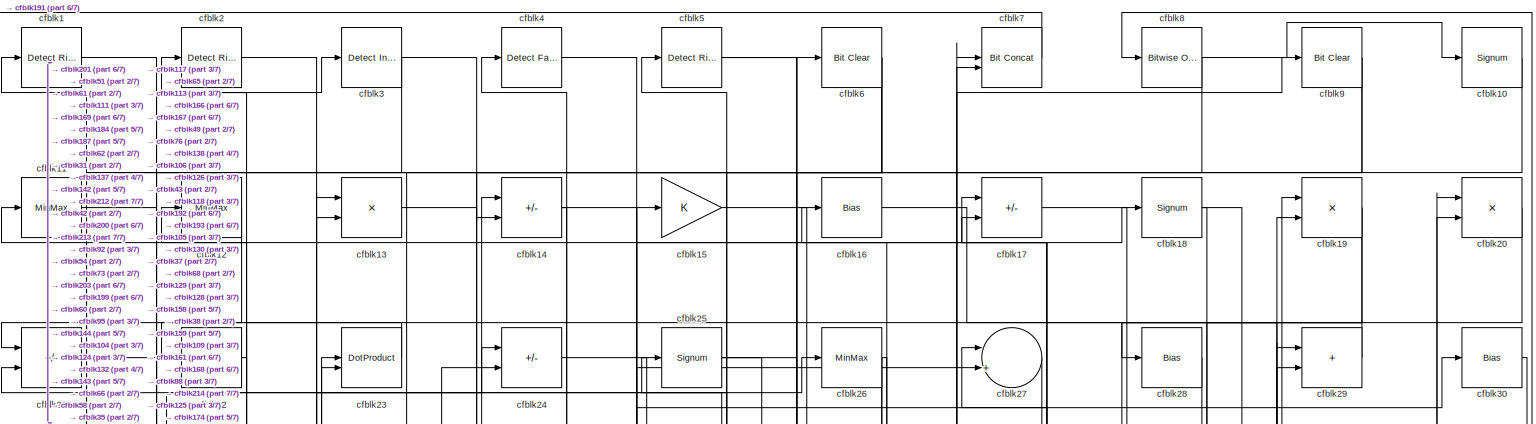
[diagram: root canvas - part 1/7, full width, top band]
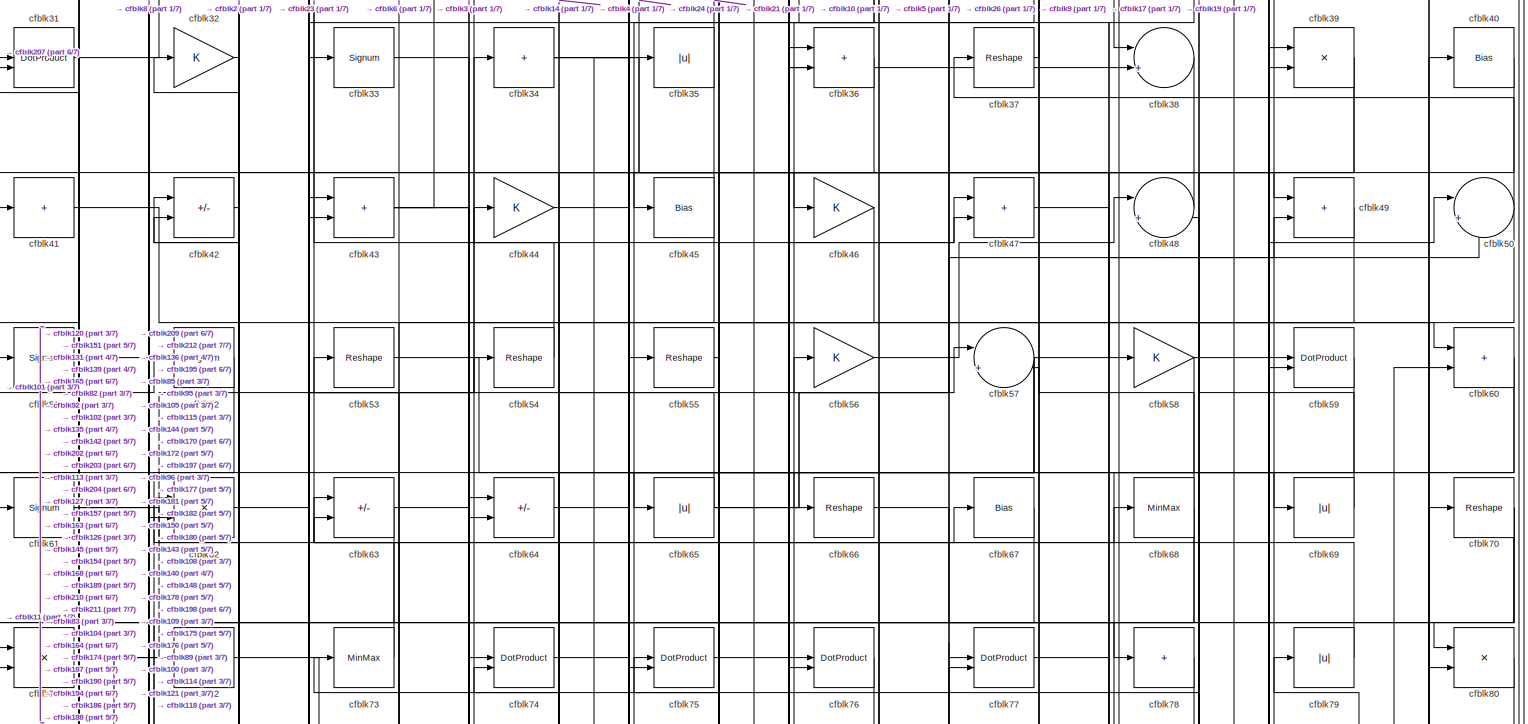
[diagram: root canvas - part 2/7, full width, top band]
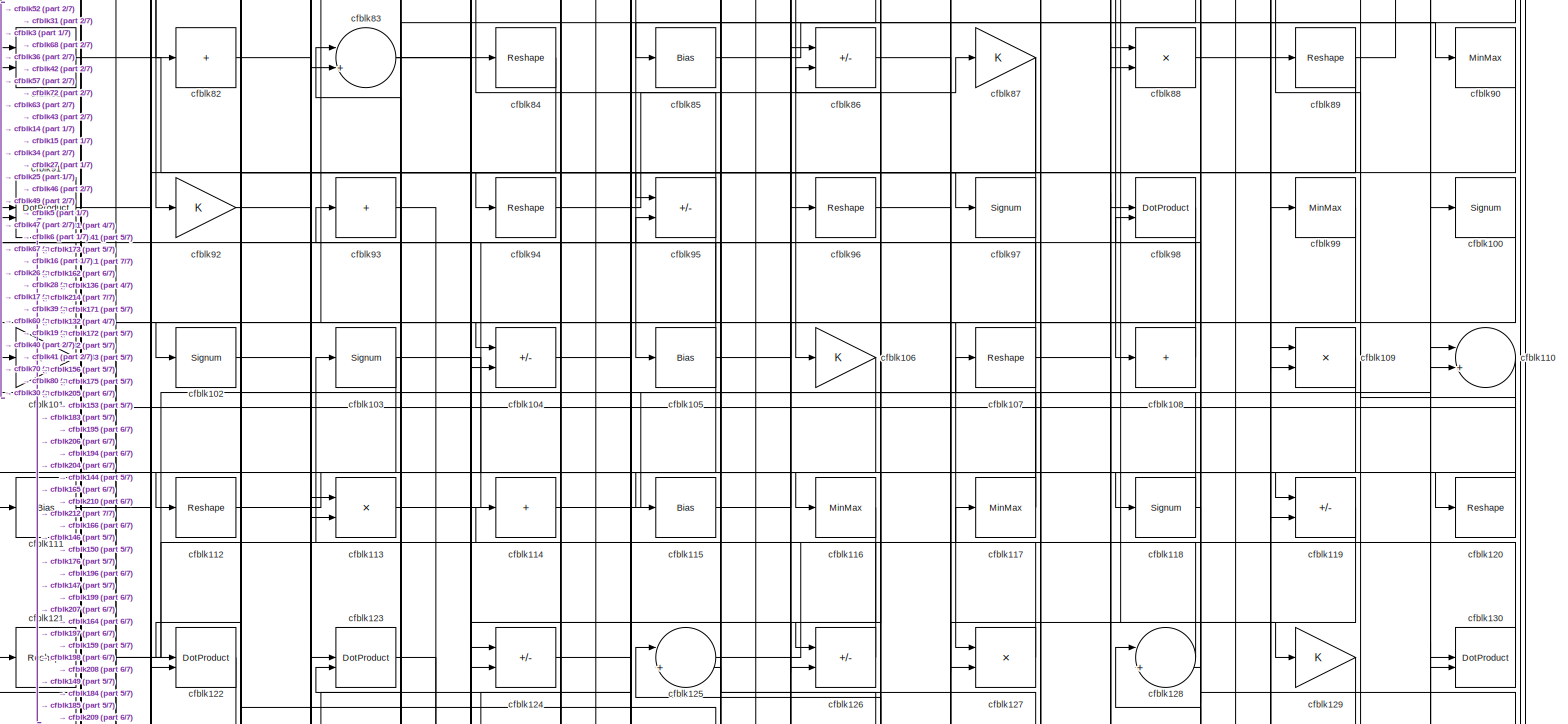
[diagram: root canvas - part 3/7, full width, middle band]
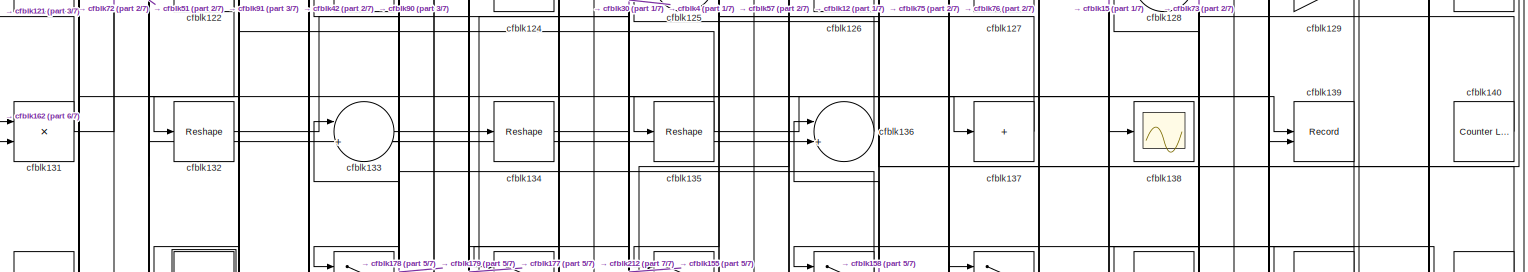
[diagram: root canvas - part 4/7, full width, middle band]
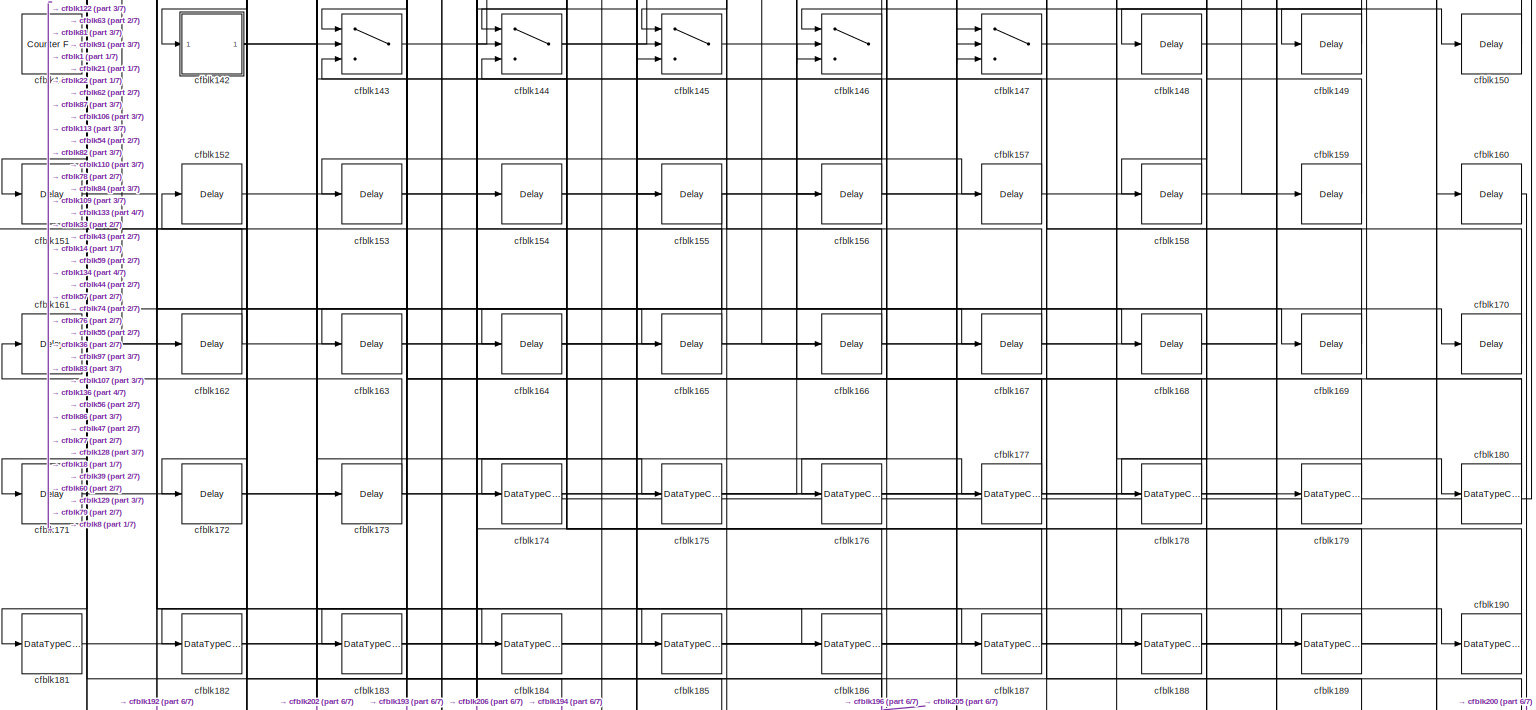
[diagram: root canvas - part 5/7, full width, bottom band]
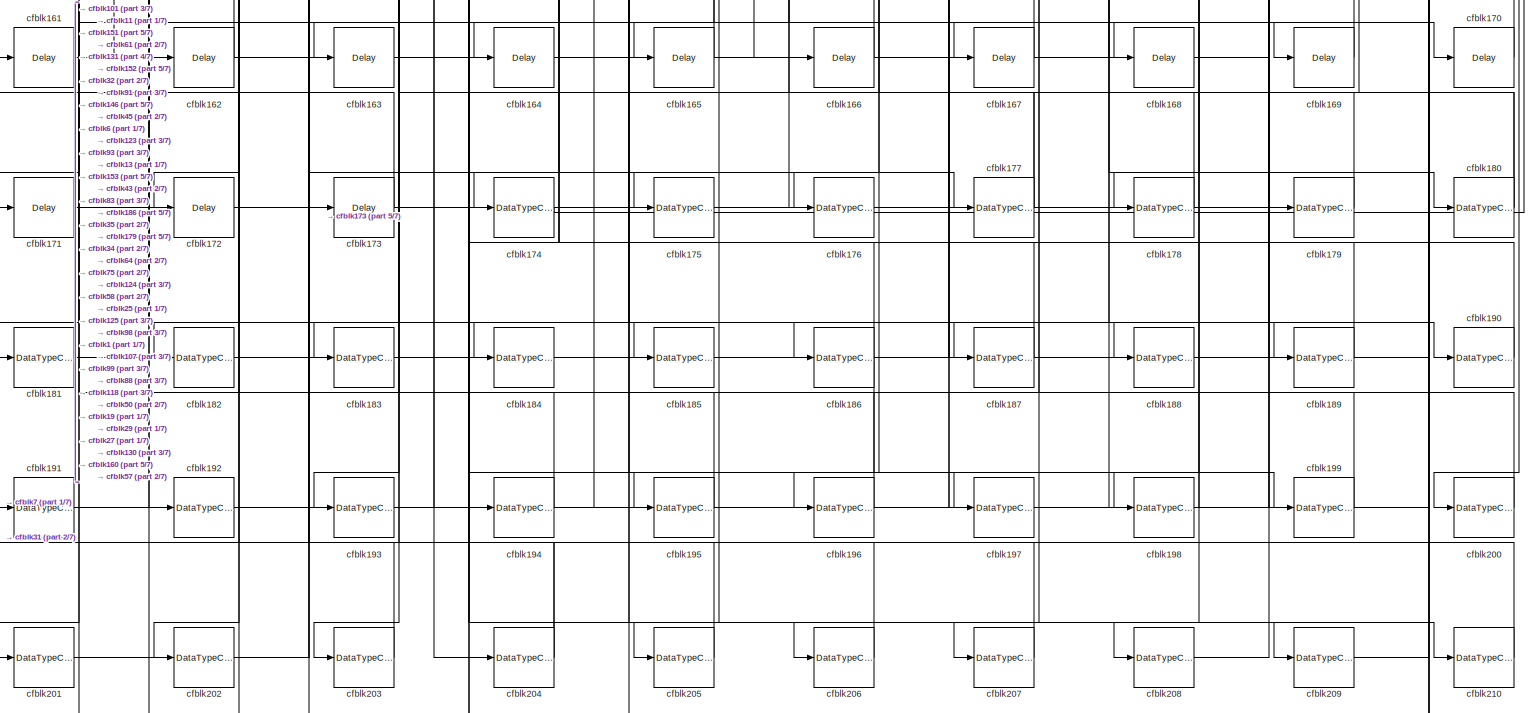
[diagram: root canvas - part 6/7, full width, bottom band]
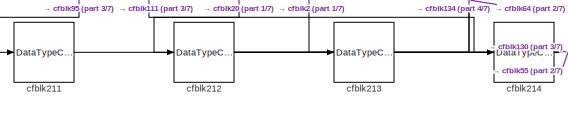
[diagram: root canvas - part 7/7, bottom left region]
MODEL slx_219996bff79e
KIND model
CONFIG AbsTol = auto
CONFIG EnableMultiTasking = off
CONFIG FixedStep = auto
CONFIG MaxStep = auto
CONFIG MinStep = auto
CONFIG RelTol = 1e-3
CONFIG SampleTimeConstraint = Unconstrained
CONFIG SolverName = VariableStepAuto
CONFIG StartTime = 0.0
CONFIG StopTime = 10.0
BLOCK [Reference] cfblk1  REF=hdlsllib/Logic and Bit
Operations/Detect Rise
Nonnegative
  SourceBlock = hdlsllib/Logic and Bit\nOperations/Detect Rise\nNonnegative
  SourceType = Detect Rise Nonnegative
BLOCK [Signum] cfblk10
BLOCK [Signum] cfblk100
BLOCK [Gain] cfblk101
BLOCK [Signum] cfblk102
BLOCK [Signum] cfblk103
BLOCK [Sum] cfblk104
  IconShape = rectangular
  Inputs = +-
BLOCK [Bias] cfblk105
  Bias = 0.0
  SaturateOnIntegerOverflow = off
BLOCK [Gain] cfblk106
BLOCK [Reshape] cfblk107
BLOCK [Sum] cfblk108
  IconShape = rectangular
  Inputs = +
BLOCK [Product] cfblk109
  Inputs = */
  RndMeth = Zero
  SaturateOnIntegerOverflow = on
BLOCK [MinMax] cfblk11
BLOCK [Sum] cfblk110
  Inputs = |++
BLOCK [Bias] cfblk111
  Bias = 0.0
  SaturateOnIntegerOverflow = off
BLOCK [Reshape] cfblk112
BLOCK [Product] cfblk113
  Inputs = */
  RndMeth = Zero
  SaturateOnIntegerOverflow = on
BLOCK [Sum] cfblk114
  IconShape = rectangular
  Inputs = +
BLOCK [Bias] cfblk115
  Bias = 0.0
  SaturateOnIntegerOverflow = off
BLOCK [MinMax] cfblk116
BLOCK [MinMax] cfblk117
BLOCK [Signum] cfblk118
BLOCK [Sum] cfblk119
  IconShape = rectangular
  Inputs = +-
BLOCK [MinMax] cfblk12
BLOCK [Reshape] cfblk120
BLOCK [Reshape] cfblk121
BLOCK [DotProduct] cfblk122
  OutDataTypeStr = Inherit: Inherit via internal rule
BLOCK [DotProduct] cfblk123
  OutDataTypeStr = Inherit: Inherit via internal rule
BLOCK [Sum] cfblk124
  IconShape = rectangular
  Inputs = +-
BLOCK [Sum] cfblk125
  Inputs = |++
BLOCK [Sum] cfblk126
  IconShape = rectangular
  Inputs = +-
BLOCK [Product] cfblk127
  Inputs = */
  RndMeth = Zero
  SaturateOnIntegerOverflow = on
BLOCK [Sum] cfblk128
  Inputs = |++
BLOCK [Gain] cfblk129
BLOCK [Product] cfblk13
  Inputs = */
  RndMeth = Zero
  SaturateOnIntegerOverflow = on
BLOCK [DotProduct] cfblk130
  OutDataTypeStr = Inherit: Inherit via internal rule
BLOCK [Product] cfblk131
  Inputs = */
  RndMeth = Zero
  SaturateOnIntegerOverflow = on
BLOCK [Reshape] cfblk132
BLOCK [Sum] cfblk133
  Inputs = |++
BLOCK [Reshape] cfblk134
BLOCK [Reshape] cfblk135
BLOCK [Sum] cfblk136
  Inputs = |++
BLOCK [Sum] cfblk137
  IconShape = rectangular
  Inputs = +
BLOCK [Scope] cfblk138
  Floating = off
  NumInputPorts = 1
  ScopeSpecificationString = Simulink.scopes.TimeScopeBlockCfg('CurrentConfiguration', extmgr.ConfigurationSet(extmgr.Configuration('Core','General UI',true),extmgr.Configuration('Core','Source UI',true),extmgr.Configuration('Sources','WiredSimulink',true,'DataLoggingVariableName','ScopeData2','DataLoggingSaveFormat','Array','DataLoggingLimitDataPoints',true,'DataLoggingDecimation','1'),extmgr.Configuration('Visuals','Time Do...<+868ch>
BLOCK [Record] cfblk139
  CompatibilityTag = XY
  FileSettingsInternal = {"entries":[{"content":{"excelSettings":{"content":{},"type":"Streamout.ExcelSettings"}},"type":"Streamout.FileSettingStorage","uuid":""}],"packageUris":["http:\/\/schema.mathworks.com\/mf0\/streamout_blocks\/R2020a"],"version":"1.0"}
  Layout = [1 1]
  SignalsInternal = {"entries":[{"content":{"signals":[{"content":{"blockPath":[],"dimensions":[1],"domain":"","lineColor":"#a2142f","plots":[1],"port":1,"signalID":2509,"signalName":"XY Graph:1"},"type":"RecordBlkView.Signal","uuid":""},{"content":{"blockPath":[],"dimensions":[1],"domain":"","lineColor":"#139fff","plots":[1],"port":2,"signalID":2512,"signalName":"XY Graph:2"},"type":"RecordBlkView.Signal","uuid":""}...<+146ch>
  VisualizationBindings = {"xyplotplugin":{"info":[{"series":[{"bindingParametersList":[{"parameter":"X-Axis","signalID":2509,"signalName":"XY Graph:1"},{"parameter":"Y-Axis","signalID":2512,"signalName":"XY Graph:2"}],"seriesID":52686}],"subplotID":1}]}}
  st = -1
BLOCK [Sum] cfblk14
  IconShape = rectangular
  Inputs = +-
BLOCK [Reference] cfblk140  REF=hdlsllib/Sources/Counter
Limited
  SourceBlock = hdlsllib/Sources/Counter\nLimited
  SourceType = Counter Limited
BLOCK [Reference] cfblk141  REF=hdlsllib/Sources/Counter
Free-Running
  SourceBlock = hdlsllib/Sources/Counter\nFree-Running
  SourceType = Counter Free-Running
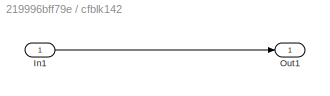
BLOCK [SubSystem] cfblk142
  LibrarySourceBlock = hdlsllib/Ports &\nSubsystems/Subsystem
BLOCK [Inport] cfblk142/In1
BLOCK [Outport] cfblk142/Out1
BLOCK [Switch] cfblk143
  InputSameDT = off
  SaturateOnIntegerOverflow = off
BLOCK [Switch] cfblk144
  InputSameDT = off
  SaturateOnIntegerOverflow = off
BLOCK [Switch] cfblk145
  InputSameDT = off
  SaturateOnIntegerOverflow = off
BLOCK [Switch] cfblk146
  InputSameDT = off
  SaturateOnIntegerOverflow = off
BLOCK [Switch] cfblk147
  InputSameDT = off
  SaturateOnIntegerOverflow = off
BLOCK [Delay] cfblk148
  InputPortMap = u0
  SampleTime = 1
BLOCK [Delay] cfblk149
  InputPortMap = u0
  SampleTime = 1
BLOCK [Gain] cfblk15
BLOCK [Delay] cfblk150
  InputPortMap = u0
  SampleTime = 1
BLOCK [Delay] cfblk151
  InputPortMap = u0
  SampleTime = 1
BLOCK [Delay] cfblk152
  InputPortMap = u0
  SampleTime = 1
BLOCK [Delay] cfblk153
  InputPortMap = u0
  SampleTime = 1
BLOCK [Delay] cfblk154
  InputPortMap = u0
  SampleTime = 1
BLOCK [Delay] cfblk155
  InputPortMap = u0
  SampleTime = 1
BLOCK [Delay] cfblk156
  InputPortMap = u0
  SampleTime = 1
BLOCK [Delay] cfblk157
  InputPortMap = u0
  SampleTime = 1
BLOCK [Delay] cfblk158
  InputPortMap = u0
  SampleTime = 1
BLOCK [Delay] cfblk159
  InputPortMap = u0
  SampleTime = 1
BLOCK [Bias] cfblk16
  Bias = 0.0
  SaturateOnIntegerOverflow = off
BLOCK [Delay] cfblk160
  InputPortMap = u0
  SampleTime = 1
BLOCK [Delay] cfblk161
  InputPortMap = u0
  SampleTime = 1
BLOCK [Delay] cfblk162
  InputPortMap = u0
  SampleTime = 1
BLOCK [Delay] cfblk163
  InputPortMap = u0
  SampleTime = 1
BLOCK [Delay] cfblk164
  InputPortMap = u0
  SampleTime = 1
BLOCK [Delay] cfblk165
  InputPortMap = u0
  SampleTime = 1
BLOCK [Delay] cfblk166
  InputPortMap = u0
  SampleTime = 1
BLOCK [Delay] cfblk167
  InputPortMap = u0
  SampleTime = 1
BLOCK [Delay] cfblk168
  InputPortMap = u0
  SampleTime = 1
BLOCK [Delay] cfblk169
  InputPortMap = u0
  SampleTime = 1
BLOCK [Sum] cfblk17
  IconShape = rectangular
  Inputs = +-
BLOCK [Delay] cfblk170
  InputPortMap = u0
  SampleTime = 1
BLOCK [Delay] cfblk171
  InputPortMap = u0
  SampleTime = 1
BLOCK [Delay] cfblk172
  InputPortMap = u0
  SampleTime = 1
BLOCK [Delay] cfblk173
  InputPortMap = u0
  SampleTime = 1
BLOCK [DataTypeConversion] cfblk174
  OutDataTypeStr = uint8
  RndMeth = Floor
  SaturateOnIntegerOverflow = off
BLOCK [DataTypeConversion] cfblk175
  OutDataTypeStr = uint8
  RndMeth = Floor
  SaturateOnIntegerOverflow = off
BLOCK [DataTypeConversion] cfblk176
  OutDataTypeStr = uint8
  RndMeth = Floor
  SaturateOnIntegerOverflow = off
BLOCK [DataTypeConversion] cfblk177
  RndMeth = Floor
  SaturateOnIntegerOverflow = off
BLOCK [DataTypeConversion] cfblk178
  OutDataTypeStr = uint8
  RndMeth = Floor
  SaturateOnIntegerOverflow = off
BLOCK [DataTypeConversion] cfblk179
  OutDataTypeStr = uint8
  RndMeth = Floor
  SaturateOnIntegerOverflow = off
BLOCK [Signum] cfblk18
BLOCK [DataTypeConversion] cfblk180
  RndMeth = Floor
  SaturateOnIntegerOverflow = off
BLOCK [DataTypeConversion] cfblk181
  OutDataTypeStr = uint8
  RndMeth = Floor
  SaturateOnIntegerOverflow = off
BLOCK [DataTypeConversion] cfblk182
  OutDataTypeStr = uint8
  RndMeth = Floor
  SaturateOnIntegerOverflow = off
BLOCK [DataTypeConversion] cfblk183
  OutDataTypeStr = uint8
  RndMeth = Floor
  SaturateOnIntegerOverflow = off
BLOCK [DataTypeConversion] cfblk184
  OutDataTypeStr = uint8
  RndMeth = Floor
  SaturateOnIntegerOverflow = off
BLOCK [DataTypeConversion] cfblk185
  OutDataTypeStr = uint8
  RndMeth = Floor
  SaturateOnIntegerOverflow = off
BLOCK [DataTypeConversion] cfblk186
  RndMeth = Floor
  SaturateOnIntegerOverflow = off
BLOCK [DataTypeConversion] cfblk187
  OutDataTypeStr = uint8
  RndMeth = Floor
  SaturateOnIntegerOverflow = off
BLOCK [DataTypeConversion] cfblk188
  OutDataTypeStr = uint8
  RndMeth = Floor
  SaturateOnIntegerOverflow = off
BLOCK [DataTypeConversion] cfblk189
  OutDataTypeStr = uint8
  RndMeth = Floor
  SaturateOnIntegerOverflow = off
BLOCK [Product] cfblk19
  Inputs = */
  RndMeth = Zero
  SaturateOnIntegerOverflow = on
BLOCK [DataTypeConversion] cfblk190
  OutDataTypeStr = uint8
  RndMeth = Floor
  SaturateOnIntegerOverflow = off
BLOCK [DataTypeConversion] cfblk191
  OutDataTypeStr = uint8
  RndMeth = Floor
  SaturateOnIntegerOverflow = off
BLOCK [DataTypeConversion] cfblk192
  OutDataTypeStr = uint8
  RndMeth = Floor
  SaturateOnIntegerOverflow = off
BLOCK [DataTypeConversion] cfblk193
  OutDataTypeStr = uint8
  RndMeth = Floor
  SaturateOnIntegerOverflow = off
BLOCK [DataTypeConversion] cfblk194
  RndMeth = Floor
  SaturateOnIntegerOverflow = off
BLOCK [DataTypeConversion] cfblk195
  OutDataTypeStr = uint8
  RndMeth = Floor
  SaturateOnIntegerOverflow = off
BLOCK [DataTypeConversion] cfblk196
  RndMeth = Floor
  SaturateOnIntegerOverflow = off
BLOCK [DataTypeConversion] cfblk197
  OutDataTypeStr = uint8
  RndMeth = Floor
  SaturateOnIntegerOverflow = off
BLOCK [DataTypeConversion] cfblk198
  OutDataTypeStr = uint8
  RndMeth = Floor
  SaturateOnIntegerOverflow = off
BLOCK [DataTypeConversion] cfblk199
  OutDataTypeStr = uint8
  RndMeth = Floor
  SaturateOnIntegerOverflow = off
BLOCK [Reference] cfblk2  REF=hdlsllib/Logic and Bit
Operations/Detect Rise
Nonnegative
  SourceBlock = hdlsllib/Logic and Bit\nOperations/Detect Rise\nNonnegative
  SourceType = Detect Rise Nonnegative
BLOCK [Product] cfblk20
  Inputs = */
  RndMeth = Zero
  SaturateOnIntegerOverflow = on
BLOCK [DataTypeConversion] cfblk200
  OutDataTypeStr = uint8
  RndMeth = Floor
  SaturateOnIntegerOverflow = off
BLOCK [DataTypeConversion] cfblk201
  OutDataTypeStr = uint8
  RndMeth = Floor
  SaturateOnIntegerOverflow = off
BLOCK [DataTypeConversion] cfblk202
  OutDataTypeStr = uint8
  RndMeth = Floor
  SaturateOnIntegerOverflow = off
BLOCK [DataTypeConversion] cfblk203
  OutDataTypeStr = uint8
  RndMeth = Floor
  SaturateOnIntegerOverflow = off
BLOCK [DataTypeConversion] cfblk204
  RndMeth = Floor
  SaturateOnIntegerOverflow = off
BLOCK [DataTypeConversion] cfblk205
  OutDataTypeStr = uint8
  RndMeth = Floor
  SaturateOnIntegerOverflow = off
BLOCK [DataTypeConversion] cfblk206
  OutDataTypeStr = uint8
  RndMeth = Floor
  SaturateOnIntegerOverflow = off
BLOCK [DataTypeConversion] cfblk207
  OutDataTypeStr = uint8
  RndMeth = Floor
  SaturateOnIntegerOverflow = off
BLOCK [DataTypeConversion] cfblk208
  OutDataTypeStr = uint8
  RndMeth = Floor
  SaturateOnIntegerOverflow = off
BLOCK [DataTypeConversion] cfblk209
  OutDataTypeStr = uint8
  RndMeth = Floor
  SaturateOnIntegerOverflow = off
BLOCK [Sum] cfblk21
  IconShape = rectangular
  Inputs = +-
BLOCK [DataTypeConversion] cfblk210
  OutDataTypeStr = uint8
  RndMeth = Floor
  SaturateOnIntegerOverflow = off
BLOCK [DataTypeConversion] cfblk211
  OutDataTypeStr = uint8
  RndMeth = Floor
  SaturateOnIntegerOverflow = off
BLOCK [DataTypeConversion] cfblk212
  RndMeth = Floor
  SaturateOnIntegerOverflow = off
BLOCK [DataTypeConversion] cfblk213
  OutDataTypeStr = uint8
  RndMeth = Floor
  SaturateOnIntegerOverflow = off
BLOCK [DataTypeConversion] cfblk214
  OutDataTypeStr = uint8
  RndMeth = Floor
  SaturateOnIntegerOverflow = off
BLOCK [Bias] cfblk22
  Bias = 0.0
  SaturateOnIntegerOverflow = off
BLOCK [DotProduct] cfblk23
  OutDataTypeStr = Inherit: Inherit via internal rule
BLOCK [Sum] cfblk24
  IconShape = rectangular
  Inputs = +-
BLOCK [Signum] cfblk25
BLOCK [MinMax] cfblk26
BLOCK [Sum] cfblk27
  Inputs = |++
BLOCK [Bias] cfblk28
  Bias = 0.0
  SaturateOnIntegerOverflow = off
BLOCK [Sum] cfblk29
  IconShape = rectangular
BLOCK [Reference] cfblk3  REF=simulink/Logic and Bit
Operations/Detect
Increase
  LibrarySourceBlock = hdlsllib/Logic and Bit\nOperations/Detect\nIncrease
  SourceBlock = simulink/Logic and Bit\nOperations/Detect\nIncrease
  SourceType = Detect Increase
BLOCK [Bias] cfblk30
  Bias = 0.0
  SaturateOnIntegerOverflow = off
BLOCK [DotProduct] cfblk31
  OutDataTypeStr = Inherit: Inherit via internal rule
BLOCK [Gain] cfblk32
BLOCK [Signum] cfblk33
BLOCK [Sum] cfblk34
  IconShape = rectangular
  Inputs = +
BLOCK [Abs] cfblk35
  SaturateOnIntegerOverflow = off
BLOCK [Sum] cfblk36
  IconShape = rectangular
BLOCK [Reshape] cfblk37
BLOCK [Sum] cfblk38
  Inputs = |++
BLOCK [Product] cfblk39
  Inputs = */
  RndMeth = Zero
  SaturateOnIntegerOverflow = on
BLOCK [Reference] cfblk4  REF=hdlsllib/Logic and Bit
Operations/Detect Fall
Nonpositive
  SourceBlock = hdlsllib/Logic and Bit\nOperations/Detect Fall\nNonpositive
  SourceType = Detect Fall Nonpositive
BLOCK [Bias] cfblk40
  Bias = 0.0
  SaturateOnIntegerOverflow = off
BLOCK [Sum] cfblk41
  IconShape = rectangular
  Inputs = +
BLOCK [Sum] cfblk42
  IconShape = rectangular
  Inputs = +-
BLOCK [Sum] cfblk43
  IconShape = rectangular
BLOCK [Gain] cfblk44
BLOCK [Bias] cfblk45
  Bias = 0.0
  SaturateOnIntegerOverflow = off
BLOCK [Gain] cfblk46
BLOCK [Sum] cfblk47
  IconShape = rectangular
BLOCK [Sum] cfblk48
  Inputs = |++
BLOCK [Sum] cfblk49
  IconShape = rectangular
BLOCK [Reference] cfblk5  REF=hdlsllib/Logic and Bit
Operations/Detect Rise
Nonnegative
  SourceBlock = hdlsllib/Logic and Bit\nOperations/Detect Rise\nNonnegative
  SourceType = Detect Rise Nonnegative
BLOCK [Sum] cfblk50
  Inputs = |++
BLOCK [Signum] cfblk51
BLOCK [Signum] cfblk52
BLOCK [Reshape] cfblk53
BLOCK [Reshape] cfblk54
BLOCK [Reshape] cfblk55
BLOCK [Gain] cfblk56
BLOCK [Sum] cfblk57
  Inputs = |++
BLOCK [Gain] cfblk58
BLOCK [DotProduct] cfblk59
  OutDataTypeStr = Inherit: Inherit via internal rule
BLOCK [Reference] cfblk6  REF=simulink/Logic and Bit
Operations/Bit Clear
  LibrarySourceBlock = hdlsllib/Logic and Bit\nOperations/Bit Clear
  SourceBlock = simulink/Logic and Bit\nOperations/Bit Clear
  SourceType = Bit Clear
BLOCK [Sum] cfblk60
  IconShape = rectangular
BLOCK [Signum] cfblk61
BLOCK [Product] cfblk62
  Inputs = */
  RndMeth = Zero
  SaturateOnIntegerOverflow = on
BLOCK [Sum] cfblk63
  IconShape = rectangular
  Inputs = +-
BLOCK [Sum] cfblk64
  IconShape = rectangular
  Inputs = +-
BLOCK [Abs] cfblk65
  SaturateOnIntegerOverflow = off
BLOCK [Reshape] cfblk66
BLOCK [Bias] cfblk67
  Bias = 0.0
  SaturateOnIntegerOverflow = off
BLOCK [MinMax] cfblk68
BLOCK [Abs] cfblk69
  SaturateOnIntegerOverflow = off
BLOCK [Reference] cfblk7  REF=hdlsllib/Logic and Bit
Operations/Bit Concat
  SourceBlock = hdlsllib/Logic and Bit\nOperations/Bit Concat
  SourceType = Bit Concat
BLOCK [Reshape] cfblk70
BLOCK [Product] cfblk71
  Inputs = */
  RndMeth = Zero
  SaturateOnIntegerOverflow = on
BLOCK [Bias] cfblk72
  Bias = 0.0
  SaturateOnIntegerOverflow = off
BLOCK [MinMax] cfblk73
BLOCK [DotProduct] cfblk74
  OutDataTypeStr = Inherit: Inherit via internal rule
BLOCK [DotProduct] cfblk75
  OutDataTypeStr = Inherit: Inherit via internal rule
BLOCK [DotProduct] cfblk76
  OutDataTypeStr = Inherit: Inherit via internal rule
BLOCK [DotProduct] cfblk77
  OutDataTypeStr = Inherit: Inherit via internal rule
BLOCK [Sum] cfblk78
  IconShape = rectangular
  Inputs = +
BLOCK [Abs] cfblk79
  SaturateOnIntegerOverflow = off
BLOCK [Reference] cfblk8  REF=simulink/Logic and Bit
Operations/Bitwise
Operator
  LibrarySourceBlock = hdlsllib/Logic and Bit\nOperations/Bitwise\nOperator
  SourceBlock = simulink/Logic and Bit\nOperations/Bitwise\nOperator
  SourceType = Bitwise Operator
BLOCK [Product] cfblk80
  Inputs = */
  RndMeth = Zero
  SaturateOnIntegerOverflow = on
BLOCK [Product] cfblk81
  Inputs = */
  RndMeth = Zero
  SaturateOnIntegerOverflow = on
BLOCK [Sum] cfblk82
  IconShape = rectangular
  Inputs = +
BLOCK [Sum] cfblk83
  Inputs = |++
BLOCK [Reshape] cfblk84
BLOCK [Bias] cfblk85
  Bias = 0.0
  SaturateOnIntegerOverflow = off
BLOCK [Sum] cfblk86
  IconShape = rectangular
  Inputs = +-
BLOCK [Gain] cfblk87
BLOCK [Product] cfblk88
  Inputs = */
  RndMeth = Zero
  SaturateOnIntegerOverflow = on
BLOCK [Reshape] cfblk89
BLOCK [Reference] cfblk9  REF=simulink/Logic and Bit
Operations/Bit Clear
  LibrarySourceBlock = hdlsllib/Logic and Bit\nOperations/Bit Clear
  SourceBlock = simulink/Logic and Bit\nOperations/Bit Clear
  SourceType = Bit Clear
BLOCK [MinMax] cfblk90
BLOCK [DotProduct] cfblk91
  OutDataTypeStr = Inherit: Inherit via internal rule
BLOCK [Gain] cfblk92
BLOCK [Sum] cfblk93
  IconShape = rectangular
  Inputs = +
BLOCK [Reshape] cfblk94
BLOCK [Sum] cfblk95
  IconShape = rectangular
  Inputs = +-
BLOCK [Reshape] cfblk96
BLOCK [Signum] cfblk97
BLOCK [DotProduct] cfblk98
  OutDataTypeStr = Inherit: Inherit via internal rule
BLOCK [MinMax] cfblk99
LINE cfblk100:1 -> cfblk101:1
NET cfblk101:1 -> cfblk162:1, cfblk52:1
LINE cfblk102:1 -> cfblk57:1
NET cfblk103:1 -> cfblk116:1, cfblk122:1
LINE cfblk104:1 -> cfblk15:1
NET cfblk105:1 -> cfblk111:1, cfblk47:2, cfblk63:1
LINE cfblk106:1 -> cfblk143:2
NET cfblk107:1 -> cfblk120:1, cfblk176:1, cfblk81:2
LINE cfblk108:1 -> cfblk42:1
LINE cfblk109:1 -> cfblk144:2
LINE cfblk10:1 -> cfblk65:1
LINE cfblk110:1 -> cfblk183:1
NET cfblk111:1 -> cfblk214:1, cfblk3:1
NET cfblk112:1 -> cfblk119:1, cfblk83:2
LINE cfblk113:1 -> cfblk6:1
LINE cfblk114:1 -> cfblk40:1
LINE cfblk115:1 -> cfblk67:1
LINE cfblk116:1 -> cfblk124:2
NET cfblk117:1 -> cfblk25:1, cfblk95:2
NET cfblk118:1 -> cfblk16:1, cfblk208:1
LINE cfblk119:1 -> cfblk127:2
LINE cfblk11:1 -> cfblk169:1
NET cfblk120:1 -> cfblk31:2, cfblk89:1
NET cfblk121:1 -> cfblk70:1, cfblk86:1
LINE cfblk122:1 -> cfblk171:1
LINE cfblk123:1 -> cfblk204:1
LINE cfblk124:1 -> cfblk27:2
LINE cfblk125:1 -> cfblk117:1
LINE cfblk126:1 -> cfblk5:1
LINE cfblk127:1 -> cfblk114:1
LINE cfblk128:1 -> cfblk103:1
LINE cfblk129:1 -> cfblk149:1
LINE cfblk12:1 -> cfblk22:1
LINE cfblk130:1 -> cfblk17:2
NET cfblk131:1 -> cfblk121:1, cfblk72:1
LINE cfblk132:1 -> cfblk30:1
LINE cfblk133:1 -> cfblk177:1
LINE cfblk134:1 -> cfblk155:1
NET cfblk135:1 -> cfblk139:1, cfblk42:2
LINE cfblk136:1 -> cfblk75:1
LINE cfblk137:1 -> cfblk12:1
LINE cfblk13:1 -> cfblk199:1
LINE cfblk140:1 -> cfblk73:1
LINE cfblk141:1 -> cfblk81:1
LINE cfblk142/In1:1 -> cfblk142/Out1:1
NET cfblk142:1 -> cfblk185:1, cfblk54:1, cfblk62:1
LINE cfblk143:1 -> cfblk18:1
NET cfblk144:1 -> cfblk157:1, cfblk76:1
LINE cfblk145:1 -> cfblk156:1
NET cfblk146:1 -> cfblk193:1, cfblk83:1
LINE cfblk147:1 -> cfblk189:1
LINE cfblk148:1 -> cfblk190:1
LINE cfblk149:1 -> cfblk146:1
NET cfblk14:1 -> cfblk144:1, cfblk66:1
LINE cfblk150:1 -> cfblk86:2
LINE cfblk151:1 -> cfblk192:1
LINE cfblk152:1 -> cfblk147:1
LINE cfblk153:1 -> cfblk206:1
LINE cfblk154:1 -> cfblk39:1
LINE cfblk155:1 -> cfblk181:1
LINE cfblk156:1 -> cfblk113:1
LINE cfblk157:1 -> cfblk63:2
LINE cfblk158:1 -> cfblk136:1
LINE cfblk159:1 -> cfblk128:1
LINE cfblk15:1 -> cfblk138:1
LINE cfblk160:1 -> cfblk200:1
LINE cfblk161:1 -> cfblk29:2
LINE cfblk162:1 -> cfblk131:1
LINE cfblk163:1 -> cfblk75:2
LINE cfblk164:1 -> cfblk88:1
LINE cfblk165:1 -> cfblk124:1
LINE cfblk166:1 -> cfblk125:2
LINE cfblk167:1 -> cfblk1:1
LINE cfblk168:1 -> cfblk19:2
LINE cfblk169:1 -> cfblk27:1
LINE cfblk16:1 -> cfblk109:1
LINE cfblk170:1 -> cfblk57:2
LINE cfblk171:1 -> cfblk147:2
LINE cfblk172:1 -> cfblk36:2
LINE cfblk173:1 -> cfblk91:2
LINE cfblk174:1 -> cfblk8:1
LINE cfblk175:1 -> cfblk59:1
LINE cfblk176:1 -> cfblk59:2
NET cfblk177:1 -> cfblk143:3, cfblk56:1
LINE cfblk178:1 -> cfblk133:1
LINE cfblk179:1 -> cfblk133:2
LINE cfblk17:1 -> cfblk129:1
NET cfblk180:1 -> cfblk146:2, cfblk79:1
LINE cfblk181:1 -> cfblk77:1
LINE cfblk182:1 -> cfblk77:2
LINE cfblk183:1 -> cfblk84:1
LINE cfblk184:1 -> cfblk110:1
LINE cfblk185:1 -> cfblk110:2
NET cfblk186:1 -> cfblk144:3, cfblk205:1
LINE cfblk187:1 -> cfblk44:1
LINE cfblk188:1 -> cfblk39:2
LINE cfblk189:1 -> cfblk74:1
NET cfblk18:1 -> cfblk158:1, cfblk159:1
LINE cfblk190:1 -> cfblk74:2
LINE cfblk191:1 -> cfblk29:1
LINE cfblk192:1 -> cfblk7:1
LINE cfblk193:1 -> cfblk7:2
NET cfblk194:1 -> cfblk152:1, cfblk179:1, cfblk35:1
LINE cfblk195:1 -> cfblk93:1
NET cfblk196:1 -> cfblk160:1, cfblk161:1
LINE cfblk197:1 -> cfblk98:1
LINE cfblk198:1 -> cfblk98:2
LINE cfblk199:1 -> cfblk107:1
NET cfblk19:1 -> cfblk128:2, cfblk38:1
LINE cfblk1:1 -> cfblk187:1
LINE cfblk200:1 -> cfblk13:1
LINE cfblk201:1 -> cfblk13:2
LINE cfblk202:1 -> cfblk173:1
LINE cfblk203:1 -> cfblk32:1
NET cfblk204:1 -> cfblk43:1, cfblk91:1
LINE cfblk205:1 -> cfblk123:1
LINE cfblk206:1 -> cfblk123:2
LINE cfblk207:1 -> cfblk31:1
LINE cfblk208:1 -> cfblk99:1
LINE cfblk209:1 -> cfblk130:1
LINE cfblk20:1 -> cfblk212:1
LINE cfblk210:1 -> cfblk64:1
LINE cfblk211:1 -> cfblk64:2
NET cfblk212:1 -> cfblk130:2, cfblk134:1, cfblk55:1
LINE cfblk213:1 -> cfblk20:1
LINE cfblk214:1 -> cfblk20:2
LINE cfblk21:1 -> cfblk184:1
LINE cfblk22:1 -> cfblk142:1
LINE cfblk23:1 -> cfblk21:1
LINE cfblk24:1 -> cfblk58:1
NET cfblk25:1 -> cfblk166:1, cfblk167:1
NET cfblk26:1 -> cfblk106:1, cfblk126:1, cfblk43:2
LINE cfblk27:1 -> cfblk105:1
LINE cfblk28:1 -> cfblk88:2
LINE cfblk29:1 -> cfblk28:1
LINE cfblk2:1 -> cfblk213:1
LINE cfblk30:1 -> cfblk125:1
LINE cfblk31:1 -> cfblk24:1
LINE cfblk32:1 -> cfblk202:1
LINE cfblk33:1 -> cfblk154:1
NET cfblk34:1 -> cfblk170:1, cfblk197:1, cfblk96:1
NET cfblk35:1 -> cfblk164:1, cfblk21:2
LINE cfblk36:1 -> cfblk102:1
LINE cfblk37:1 -> cfblk17:1
LINE cfblk38:1 -> cfblk46:1
NET cfblk39:1 -> cfblk113:2, cfblk148:1
NET cfblk3:1 -> cfblk60:1, cfblk61:1
LINE cfblk40:1 -> cfblk95:1
LINE cfblk41:1 -> cfblk100:1
LINE cfblk42:1 -> cfblk2:1
NET cfblk43:1 -> cfblk126:2, cfblk145:3, cfblk168:1, cfblk24:2
LINE cfblk44:1 -> cfblk186:1
NET cfblk45:1 -> cfblk163:1, cfblk41:1
LINE cfblk46:1 -> cfblk115:1
LINE cfblk47:1 -> cfblk150:1
LINE cfblk48:1 -> cfblk45:1
LINE cfblk49:1 -> cfblk85:1
LINE cfblk4:1 -> cfblk137:1
NET cfblk50:1 -> cfblk198:1, cfblk37:1
LINE cfblk51:1 -> cfblk139:2
LINE cfblk52:1 -> cfblk82:1
LINE cfblk53:1 -> cfblk69:1
LINE cfblk54:1 -> cfblk23:1
LINE cfblk55:1 -> cfblk145:1
LINE cfblk56:1 -> cfblk48:1
NET cfblk57:1 -> cfblk104:1, cfblk131:2, cfblk145:2, cfblk49:2
NET cfblk58:1 -> cfblk195:1, cfblk50:1
LINE cfblk59:1 -> cfblk174:1
NET cfblk5:1 -> cfblk38:2, cfblk49:1
NET cfblk60:1 -> cfblk108:1, cfblk178:1
NET cfblk61:1 -> cfblk165:1, cfblk68:1
LINE cfblk62:1 -> cfblk33:1
NET cfblk63:1 -> cfblk151:1, cfblk80:2
LINE cfblk64:1 -> cfblk209:1
NET cfblk65:1 -> cfblk4:1, cfblk50:2, cfblk9:1
LINE cfblk66:1 -> cfblk78:1
LINE cfblk67:1 -> cfblk104:2
NET cfblk68:1 -> cfblk11:1, cfblk71:2, cfblk92:1
LINE cfblk69:1 -> cfblk48:2
NET cfblk6:1 -> cfblk201:1, cfblk203:1, cfblk51:1
NET cfblk70:1 -> cfblk109:2, cfblk71:1, cfblk80:1
LINE cfblk71:1 -> cfblk34:1
LINE cfblk72:1 -> cfblk127:1
LINE cfblk73:1 -> cfblk23:2
LINE cfblk74:1 -> cfblk188:1
LINE cfblk75:1 -> cfblk36:1
LINE cfblk76:1 -> cfblk135:1
LINE cfblk77:1 -> cfblk180:1
LINE cfblk78:1 -> cfblk143:1
LINE cfblk79:1 -> cfblk53:1
LINE cfblk7:1 -> cfblk191:1
LINE cfblk80:1 -> cfblk118:1
LINE cfblk81:1 -> cfblk97:1
LINE cfblk82:1 -> cfblk175:1
NET cfblk83:1 -> cfblk210:1, cfblk47:1
LINE cfblk84:1 -> cfblk153:1
LINE cfblk85:1 -> cfblk90:1
LINE cfblk86:1 -> cfblk147:3
NET cfblk87:1 -> cfblk172:1, cfblk182:1
LINE cfblk88:1 -> cfblk19:1
NET cfblk89:1 -> cfblk112:1, cfblk122:2, cfblk60:2
NET cfblk8:1 -> cfblk10:1, cfblk62:2
LINE cfblk90:1 -> cfblk132:1
LINE cfblk91:1 -> cfblk136:2
LINE cfblk92:1 -> cfblk26:1
LINE cfblk93:1 -> cfblk194:1
LINE cfblk94:1 -> cfblk87:1
NET cfblk95:1 -> cfblk14:1, cfblk211:1
LINE cfblk96:1 -> cfblk119:2
NET cfblk97:1 -> cfblk146:3, cfblk94:1
LINE cfblk98:1 -> cfblk196:1
LINE cfblk99:1 -> cfblk207:1
NET cfblk9:1 -> cfblk14:2, cfblk76:2
note: NET lines group one-source signal fan-out (src -> all destinations, sorted); 1:1 wires keep LINE
